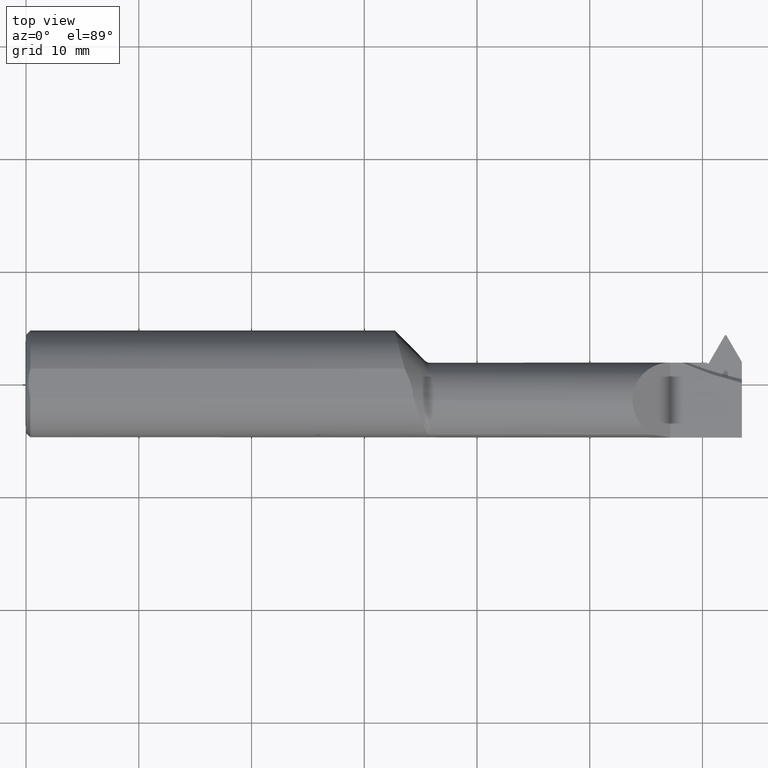
[diagram: clean part render]
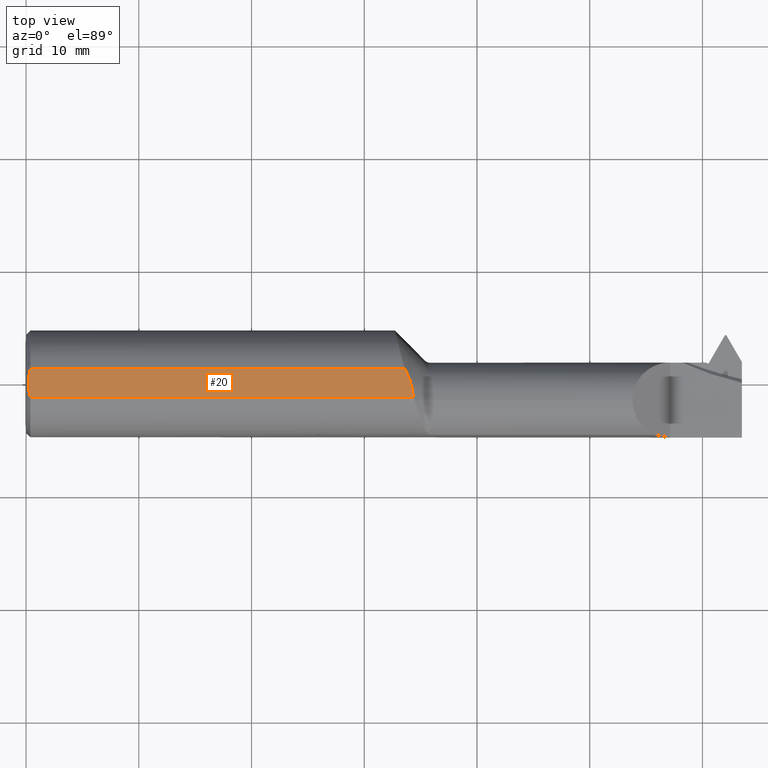
[diagram: same view with one face highlighted and labeled with its STEP entity id]
A machine part, top view. The second image highlights one B-rep face of the part: STEP entity #20.
In plain terms, the highlighted planar face has unit normal (-0, 0, -1).
Its self-contained STEP definition (entity closure, byte-faithful):
#20 = ADVANCED_FACE ( 'NONE', ( #543 ), #959, .F. ) ;
#47 = VERTEX_POINT ( 'NONE', #1042 ) ;
#79 = CARTESIAN_POINT ( 'NONE',  ( 0.01500000000000079568, 0.05073361804563106953, 0.1803500000000000381 ) ) ;
#126 = EDGE_CURVE ( 'NONE', #47, #831, #1060, .T. ) ;
#142 = CARTESIAN_POINT ( 'NONE',  ( 1.337572761939021415, 0.01862349438791069400, 0.1803500000000000103 ) ) ;
#157 = CARTESIAN_POINT ( 'NONE',  ( 1.347842309812443684, -0.01555456189894671368, 0.1803499999999999548 ) ) ;
#214 = EDGE_CURVE ( 'NONE', #583, #1080, #662, .T. ) ;
#232 = ORIENTED_EDGE ( 'NONE', *, *, #534, .F. ) ;
#238 = CARTESIAN_POINT ( 'NONE',  ( 1.345608198981766535, -0.006829386849603800297, 0.1803500000000000103 ) ) ;
#239 = EDGE_CURVE ( 'NONE', #414, #831, #322, .T. ) ;
#240 = DIRECTION ( 'NONE',  ( -1.000000000000000000, -0.000000000000000000, -0.000000000000000000 ) ) ;
#249 = CARTESIAN_POINT ( 'NONE',  ( 2.500000000000000000, -0.05073361804563106953, 0.1803500000000000381 ) ) ;
#303 = ORIENTED_EDGE ( 'NONE', *, *, #239, .F. ) ;
#322 = LINE ( 'NONE', #249, #945 ) ;
#407 = CARTESIAN_POINT ( 'NONE',  ( 0.01500000000000079568, 0.05073361804563106953, 0.1803500000000000381 ) ) ;
#414 = VERTEX_POINT ( 'NONE', #548 ) ;
#426 = ORIENTED_EDGE ( 'NONE', *, *, #214, .F. ) ;
#440 = CARTESIAN_POINT ( 'NONE',  ( 0.008000000000000249967, -0.008560842633729545334, 0.1803500000000000381 ) ) ;
#485 = VECTOR ( 'NONE', #1059, 39.37007874015748143 ) ;
#494 = CARTESIAN_POINT ( 'NONE',  ( 1.352489247483494417, -0.05073361804563106953, 0.1803500000000000381 ) ) ;
#516 = EDGE_CURVE ( 'NONE', #583, #47, #553, .T. ) ;
#534 = EDGE_CURVE ( 'NONE', #1080, #414, #856, .T. ) ;
#538 = ORIENTED_EDGE ( 'NONE', *, *, #516, .T. ) ;
#543 = FACE_OUTER_BOUND ( 'NONE', #654, .T. ) ;
#546 = CARTESIAN_POINT ( 'NONE',  ( 0.01499999999999942525, -0.05073361804563293609, 0.1803500000000000381 ) ) ;
#548 = CARTESIAN_POINT ( 'NONE',  ( 1.352489247483494417, -0.05073361804563106953, 0.1803500000000000381 ) ) ;
#553 = B_SPLINE_CURVE_WITH_KNOTS ( 'NONE', 3,
 ( #407, #736, #1071, #580, #574, #746 ),
 .UNSPECIFIED., .F., .F.,
 ( 4, 2, 4 ),
 ( 0.004855974516636805266, 0.005500369355264136430, 0.006144764193891467594 ),
 .UNSPECIFIED. ) ;
#558 = CARTESIAN_POINT ( 'NONE',  ( 1.351092997493398506, -0.03308665011114111237, 0.1803500000000000936 ) ) ;
#559 = CARTESIAN_POINT ( 'NONE',  ( 0.007999999999990098365, 7.430558883300628535E-16, 0.1803500000000000381 ) ) ;
#574 = CARTESIAN_POINT ( 'NONE',  ( 0.008000000000000399153, 0.008563083437642069265, 0.1803500000000000381 ) ) ;
#580 = CARTESIAN_POINT ( 'NONE',  ( 0.008625660259313151085, 0.01721603573659752362, 0.1803500000000000381 ) ) ;
#583 = VERTEX_POINT ( 'NONE', #79 ) ;
#586 = CARTESIAN_POINT ( 'NONE',  ( 2.500000000000000000, 0.05073361804563106953, 0.1803500000000000381 ) ) ;
#632 = DIRECTION ( 'NONE',  ( -1.000000000000000000, 0.000000000000000000, 0.000000000000000000 ) ) ;
#652 = CARTESIAN_POINT ( 'NONE',  ( 1.330428056801811865, 0.03488693378837399994, 0.1803500000000000103 ) ) ;
#654 = EDGE_LOOP ( 'NONE', ( #232, #426, #538, #702, #303 ) ) ;
#662 = LINE ( 'NONE', #586, #485 ) ;
#702 = ORIENTED_EDGE ( 'NONE', *, *, #126, .T. ) ;
#717 = CARTESIAN_POINT ( 'NONE',  ( 0.01098483483941441186, -0.03399629736709453703, 0.1803500000000000381 ) ) ;
#730 = CARTESIAN_POINT ( 'NONE',  ( 1.322226761124839056, 0.05073361804563114585, 0.1803500000000000381 ) ) ;
#736 = CARTESIAN_POINT ( 'NONE',  ( 0.01277025903650790516, 0.04249959126806788362, 0.1803500000000000381 ) ) ;
#746 = CARTESIAN_POINT ( 'NONE',  ( 0.007999999999990098365, 7.430558883300628535E-16, 0.1803500000000000381 ) ) ;
#806 = CARTESIAN_POINT ( 'NONE',  ( 0.01276000437992189963, -0.04246172269127172078, 0.1803500000000000381 ) ) ;
#811 = CARTESIAN_POINT ( 'NONE',  ( 0.000000000000000000, 0.1749999999999999889, 0.1803500000000000381 ) ) ;
#831 = VERTEX_POINT ( 'NONE', #546 ) ;
#856 = B_SPLINE_CURVE_WITH_KNOTS ( 'NONE', 3,
 ( #730, #652, #142, #238, #157, #558, #985, #494 ),
 .UNSPECIFIED., .F., .F.,
 ( 4, 2, 2, 4 ),
 ( 0.004145903190273301717, 0.005498764589092035304, 0.006175195288501404700, 0.006851625987910774963 ),
 .UNSPECIFIED. ) ;
#882 = DIRECTION ( 'NONE',  ( -0.000000000000000000, 0.000000000000000000, -1.000000000000000000 ) ) ;
#924 = AXIS2_PLACEMENT_3D ( 'NONE', #811, #882, #632 ) ;
#938 = CARTESIAN_POINT ( 'NONE',  ( 0.008612241053610889679, -0.01707100630372282435, 0.1803500000000000381 ) ) ;
#945 = VECTOR ( 'NONE', #240, 39.37007874015748143 ) ;
#959 = PLANE ( 'NONE',  #924 ) ;
#985 = CARTESIAN_POINT ( 'NONE',  ( 1.352116104292440335, -0.04189000192750386847, 0.1803499999999999548 ) ) ;
#1042 = CARTESIAN_POINT ( 'NONE',  ( 0.007999999999990098365, 7.430558883300628535E-16, 0.1803500000000000381 ) ) ;
#1050 = CARTESIAN_POINT ( 'NONE',  ( 0.01499999999999942525, -0.05073361804563293609, 0.1803500000000000381 ) ) ;
#1059 = DIRECTION ( 'NONE',  ( 1.000000000000000000, 0.000000000000000000, 0.000000000000000000 ) ) ;
#1060 = B_SPLINE_CURVE_WITH_KNOTS ( 'NONE', 3,
 ( #559, #440, #938, #717, #806, #1050 ),
 .UNSPECIFIED., .F., .F.,
 ( 4, 2, 4 ),
 ( 0.006144764193891467594, 0.006788990406055669946, 0.007433216618219871431 ),
 .UNSPECIFIED. ) ;
#1071 = CARTESIAN_POINT ( 'NONE',  ( 0.01101443691611249387, 0.03415726871037062795, 0.1803500000000000381 ) ) ;
#1078 = CARTESIAN_POINT ( 'NONE',  ( 1.322226761124839056, 0.05073361804563114585, 0.1803500000000000381 ) ) ;
#1080 = VERTEX_POINT ( 'NONE', #1078 ) ;